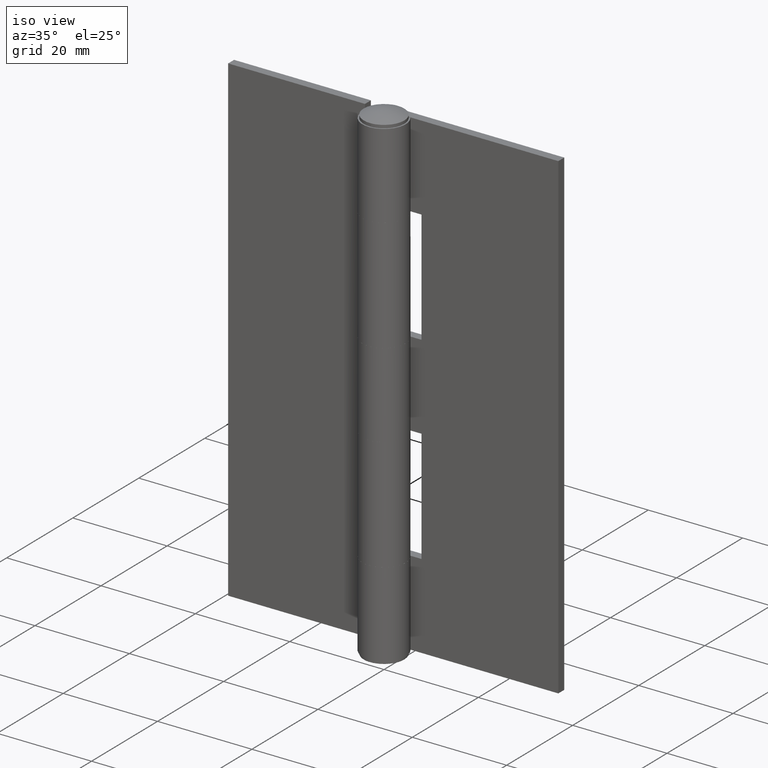
[diagram: clean part render]
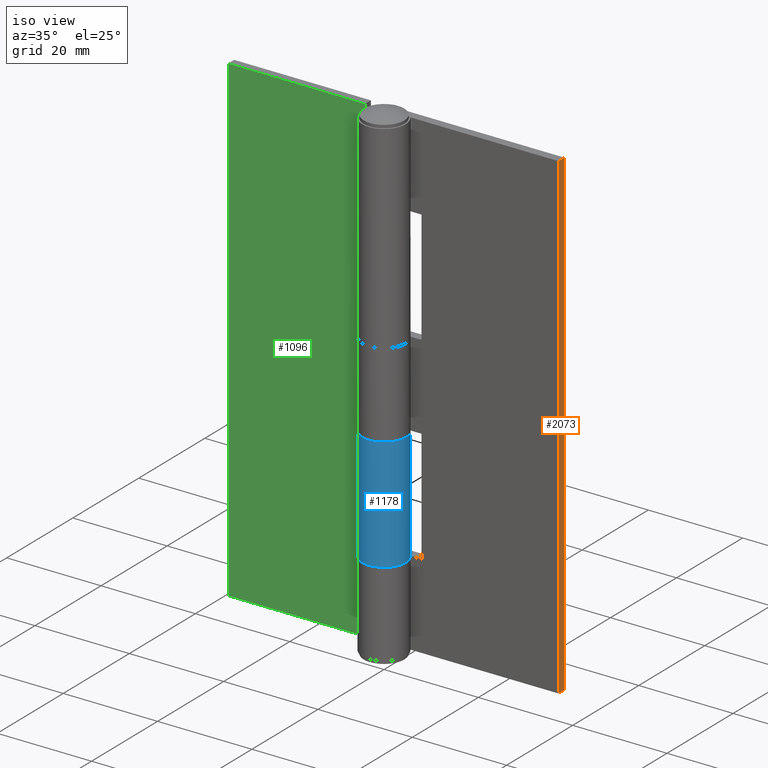
[diagram: same view with three faces highlighted in distinct colors, each labeled with its STEP entity id]
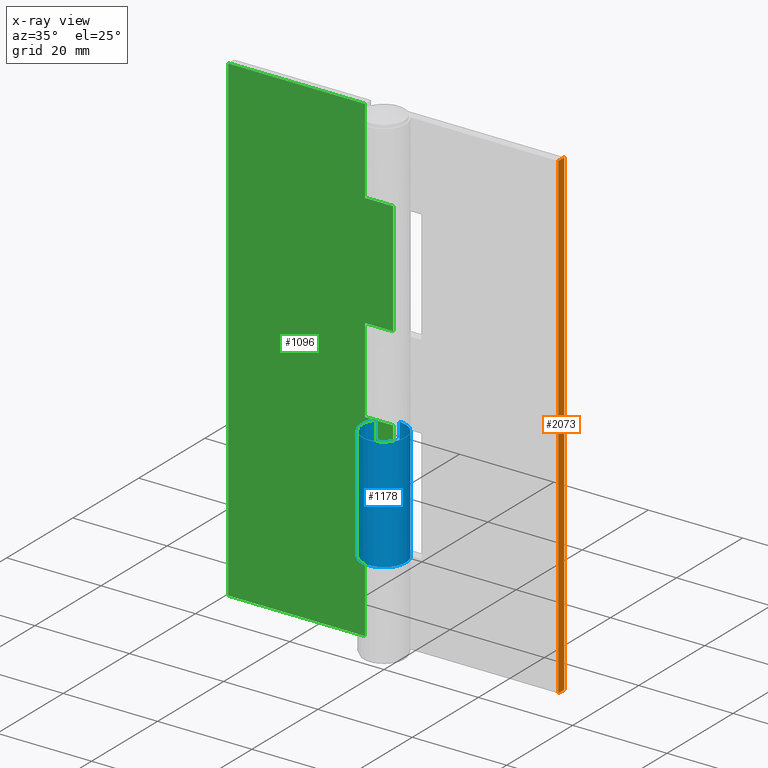
[diagram: x-ray of the same camera — body ghosted, the three highlighted faces saturated]
A machine part, iso view with three faces highlighted in distinct colors.
The next image is the same camera in x-ray (body ghosted, the three faces saturated) — at least one of them is partly hidden behind the body in this view.
Their STEP definitions:

[orange] entity #2073 — the highlighted face is a freeform B-spline surface patch.
#1602=CARTESIAN_POINT('',(35.0,4.599998000000000,102.0));
#1603=VERTEX_POINT('',#1602);
#1609=CARTESIAN_POINT('',(35.0,4.599998000000000,0.0));
#1610=VERTEX_POINT('',#1609);
#1611=CARTESIAN_POINT('',(35.0,4.599998000000000,102.0));
#1612=CARTESIAN_POINT('',(35.0,4.599998000000000,0.0));
#1613=QUASI_UNIFORM_CURVE('',1,(#1611,#1612),.UNSPECIFIED.,.F.,.U.);
#1614=EDGE_CURVE('',#1603,#1610,#1613,.T.);
#2019=CARTESIAN_POINT('',(35.0,2.799999000000000,0.0));
#2020=VERTEX_POINT('',#2019);
#2021=CARTESIAN_POINT('',(35.0,2.799999000000000,0.0));
#2022=CARTESIAN_POINT('',(35.0,4.599998000000000,0.0));
#2023=QUASI_UNIFORM_CURVE('',1,(#2021,#2022),.UNSPECIFIED.,.F.,.U.);
#2024=EDGE_CURVE('',#2020,#1610,#2023,.T.);
#2040=CARTESIAN_POINT('',(35.0,2.799999000000000,102.0));
#2041=VERTEX_POINT('',#2040);
#2047=CARTESIAN_POINT('',(35.0,2.799999000000000,102.0));
#2048=CARTESIAN_POINT('',(35.0,4.599998000000000,102.0));
#2049=QUASI_UNIFORM_CURVE('',1,(#2047,#2048),.UNSPECIFIED.,.F.,.U.);
#2050=EDGE_CURVE('',#2041,#1603,#2049,.T.);
#2058=CARTESIAN_POINT('',(35.0,2.710089053438747,-5.094899802304204));
#2059=CARTESIAN_POINT('',(35.0,2.710089053438747,107.094902538157400));
#2060=CARTESIAN_POINT('',(35.0,4.689907994840990,-5.094899802304204));
#2061=CARTESIAN_POINT('',(35.0,4.689907994840990,107.094902538157400));
#2062=B_SPLINE_SURFACE_WITH_KNOTS('',1,1,((#2058,#2060),(#2059,#2061)),.UNSPECIFIED.,.F.,.F.,.U.,(2,2),(2,2),(0.0,112.189802340461600),(0.0,1.979818941402243),.UNSPECIFIED.);
#2063=ORIENTED_EDGE('',*,*,#2024,.T.);
#2064=ORIENTED_EDGE('',*,*,#1614,.F.);
#2065=ORIENTED_EDGE('',*,*,#2050,.F.);
#2066=CARTESIAN_POINT('',(35.0,2.799999000000000,102.0));
#2067=CARTESIAN_POINT('',(35.0,2.799999000000000,0.0));
#2068=QUASI_UNIFORM_CURVE('',1,(#2066,#2067),.UNSPECIFIED.,.F.,.U.);
#2069=EDGE_CURVE('',#2041,#2020,#2068,.T.);
#2070=ORIENTED_EDGE('',*,*,#2069,.T.);
#2071=EDGE_LOOP('',(#2063,#2064,#2065,#2070));
#2072=FACE_OUTER_BOUND('',#2071,.T.);
#2073=ADVANCED_FACE('',(#2072),#2062,.F.);

[blue] entity #1178 — the highlighted face is a freeform B-spline surface patch.
#475=CARTESIAN_POINT('',(-3.687479559265210,2.749999000000000,18.000000000000249));
#476=VERTEX_POINT('',#475);
#519=CARTESIAN_POINT('',(0.004289521649760,4.599998000000000,18.0));
#520=VERTEX_POINT('',#519);
#526=CARTESIAN_POINT('',(-3.687479559265210,2.749999000000000,18.000000000000249));
#527=CARTESIAN_POINT('',(-4.004047655972155,2.326184775688924,18.000000000000188));
#528=CARTESIAN_POINT('',(-4.421965141754654,1.498452534881914,18.000000000000330));
#529=CARTESIAN_POINT('',(-4.619158502781184,0.352103005805580,18.000000000000231));
#530=CARTESIAN_POINT('',(-4.588931636637108,-0.547805897309904,18.000000000000320));
#531=CARTESIAN_POINT('',(-4.431734295233734,-1.320510994021932,18.000000000000231));
#532=CARTESIAN_POINT('',(-4.122541154918716,-2.098097710249945,18.000000000000099));
#533=CARTESIAN_POINT('',(-3.599803506753085,-2.929537098987172,18.000000000000810));
#534=CARTESIAN_POINT('',(-2.897900607202823,-3.623076534515189,18.000000000000039));
#535=CARTESIAN_POINT('',(-1.953986638569426,-4.207918461931410,18.000000000000320));
#536=CARTESIAN_POINT('',(-1.066341994223844,-4.511924369887498,18.000000000000249));
#537=CARTESIAN_POINT('',(-0.139971567692412,-4.619390767764738,18.000000000000249));
#538=CARTESIAN_POINT('',(0.663573734716620,-4.577884626356755,18.000000000000409));
#539=CARTESIAN_POINT('',(1.618807893161153,-4.349735477278495,17.999999999999691));
#540=CARTESIAN_POINT('',(2.428702329997305,-3.943906041234202,18.000000000001020));
#541=CARTESIAN_POINT('',(3.124716508235053,-3.400010122023459,17.999999999999609));
#542=CARTESIAN_POINT('',(3.721043626967757,-2.767886336582733,18.000000000000941));
#543=CARTESIAN_POINT('',(4.249875411535053,-1.878607147123456,17.999999999999378));
#544=CARTESIAN_POINT('',(4.532095788405921,-0.935693467716755,18.000000000001730));
#545=CARTESIAN_POINT('',(4.630968464546582,0.023573879071402,17.999999999997691));
#546=CARTESIAN_POINT('',(4.536681996805681,1.004497310412920,18.000000000000920));
#547=CARTESIAN_POINT('',(4.190480373489985,1.978038566809289,18.000000000000249));
#548=CARTESIAN_POINT('',(3.618006614213923,2.910659603799597,18.000000000000210));
#549=CARTESIAN_POINT('',(2.884535372424856,3.643490423473032,18.000000000000298));
#550=CARTESIAN_POINT('',(1.985970309843780,4.181067498500703,18.000000000000210));
#551=CARTESIAN_POINT('',(1.062056826676249,4.514056765780568,18.000000000000401));
#552=CARTESIAN_POINT('',(0.388974045819395,4.599740233917829,18.000000000000028));
#553=CARTESIAN_POINT('',(0.004289521649760,4.599998000000000,18.0));
#554=B_SPLINE_CURVE_WITH_KNOTS('',3,(#526,#527,#528,#529,#530,#531,#532,#533,#534,#535,#536,#537,#538,#539,#540,#541,#542,#543,#544,#545,#546,#547,#548,#549,#550,#551,#552,#553),.UNSPECIFIED.,.F.,.U.,(4,1,1,1,1,1,1,1,1,1,1,1,1,1,1,1,1,1,1,1,1,1,1,1,1,4),(0.000000588664864,1.586827262887834,2.740947564820804,3.462258061168676,4.279755028636220,5.097242970480849,5.962815379554691,7.212989879264189,8.030478368644243,9.280750910881030,10.002070283071740,10.819561606364330,11.685142890819980,12.935290132784010,13.512380444182090,14.329855489522339,15.532030415904771,16.589968758283639,17.263157582705880,18.417297886181270,19.523186692019650,20.340675546737689,21.687136698049269,22.600788814238260,23.466391996909589,24.620428434843880),.UNSPECIFIED.);
#555=EDGE_CURVE('',#476,#520,#554,.T.);
#565=CARTESIAN_POINT('',(-3.687479559265210,2.749999000000000,42.0));
#566=VERTEX_POINT('',#565);
#567=CARTESIAN_POINT('',(0.004289521649760,4.599998000000000,42.0));
#568=VERTEX_POINT('',#567);
#569=CARTESIAN_POINT('',(-3.687479559265210,2.749999000000000,42.0));
#570=CARTESIAN_POINT('',(-3.869573415089463,2.505891541783529,42.000000000000028));
#571=CARTESIAN_POINT('',(-4.160083811060068,2.022738781091870,42.000000000000021));
#572=CARTESIAN_POINT('',(-4.493171333597922,1.134092869066442,42.000000000000007));
#573=CARTESIAN_POINT('',(-4.644807320990588,0.127645009933376,41.999999999999822));
#574=CARTESIAN_POINT('',(-4.548576744610353,-0.868723592868786,42.000000000000547));
#575=CARTESIAN_POINT('',(-4.258919927321644,-1.822595200895267,42.000000000000142));
#576=CARTESIAN_POINT('',(-3.849490039259850,-2.574544736364393,41.999999999999297));
#577=CARTESIAN_POINT('',(-3.302428090205509,-3.227471658237674,42.000000000000668));
#578=CARTESIAN_POINT('',(-2.747372943248498,-3.716249552975491,41.999999999999631));
#579=CARTESIAN_POINT('',(-2.118119306921339,-4.106111501332375,41.999999999999233));
#580=CARTESIAN_POINT('',(-1.420217729725903,-4.395142604089883,42.000000000002657));
#581=CARTESIAN_POINT('',(-0.591311863265327,-4.594452500713954,41.999999999998479));
#582=CARTESIAN_POINT('',(0.296210185058935,-4.622833747522521,42.000000000000163));
#583=CARTESIAN_POINT('',(1.199571376679604,-4.466010517359633,42.000000000000433));
#584=CARTESIAN_POINT('',(1.910480309543457,-4.206858207300535,41.999999999999297));
#585=CARTESIAN_POINT('',(2.568876950645702,-3.837187353081516,41.999999999999602));
#586=CARTESIAN_POINT('',(3.228059728490100,-3.322350455869780,42.000000000000220));
#587=CARTESIAN_POINT('',(3.928201277659945,-2.497713971453666,41.999999999999268));
#588=CARTESIAN_POINT('',(4.367220084032456,-1.558385664209264,42.000000000001712));
#589=CARTESIAN_POINT('',(4.580203126841495,-0.618203530418208,41.999999999996120));
#590=CARTESIAN_POINT('',(4.621442850629629,0.121614302399138,42.000000000010267));
#591=CARTESIAN_POINT('',(4.527753762390300,0.919697151699091,41.999999999995431));
#592=CARTESIAN_POINT('',(4.275413278857994,1.801570758390685,42.000000000003013));
#593=CARTESIAN_POINT('',(3.853893217622618,2.566658186185105,41.999999999998963));
#594=CARTESIAN_POINT('',(3.297238707394697,3.231404099818191,42.000000000000057));
#595=CARTESIAN_POINT('',(2.732383567445895,3.734376979867385,42.000000000000149));
#596=CARTESIAN_POINT('',(1.903078804906316,4.230775454191972,42.000000000000682));
#597=CARTESIAN_POINT('',(0.965966046996951,4.535644901455204,41.999999999996092));
#598=CARTESIAN_POINT('',(0.292795384322760,4.599739849723814,42.000000000008413));
#599=CARTESIAN_POINT('',(0.004289521649760,4.599998000000000,42.0));
#600=B_SPLINE_CURVE_WITH_KNOTS('',3,(#569,#570,#571,#572,#573,#574,#575,#576,#577,#578,#579,#580,#581,#582,#583,#584,#585,#586,#587,#588,#589,#590,#591,#592,#593,#594,#595,#596,#597,#598,#599),.UNSPECIFIED.,.F.,.U.,(4,1,1,1,1,1,1,1,1,1,1,1,1,1,1,1,1,1,1,1,1,1,1,1,1,1,1,1,4),(0.000000588656697,0.913629547780889,1.683002787392578,2.837121780872522,3.943123890219159,4.664441279150285,5.818505076129078,6.491707567711192,7.212989879259716,8.030478368640043,8.703695525085834,9.473100453362495,10.579097127039031,11.348525877392451,12.214077193702030,12.839124027656069,13.608547594056351,14.714542032511231,16.060995989600769,16.686143413117978,17.599789292245742,18.273028270469339,19.090396415403070,20.340675546737192,20.869648315036670,21.687136698048981,22.600788814238118,23.754895575559310,24.620428434843902),.UNSPECIFIED.);
#601=EDGE_CURVE('',#566,#568,#600,.T.);
#1137=CARTESIAN_POINT('',(-3.687479559265210,2.749999000000000,42.0));
#1138=CARTESIAN_POINT('',(-3.687479559265210,2.749999000000000,18.000000000000249));
#1139=QUASI_UNIFORM_CURVE('',1,(#1137,#1138),.UNSPECIFIED.,.F.,.U.);
#1140=EDGE_CURVE('',#566,#476,#1139,.T.);
#1146=CARTESIAN_POINT('',(-3.597325666293642,2.866923098135845,42.600000000000009));
#1147=CARTESIAN_POINT('',(-3.597325666293642,2.866923098135845,17.385000000000002));
#1148=CARTESIAN_POINT('',(-7.288903981172223,-1.765154207976948,42.600000000000009));
#1149=CARTESIAN_POINT('',(-7.288903981172223,-1.765154207976948,17.384999999999994));
#1150=CARTESIAN_POINT('',(-1.887117409339081,-4.195090926710597,42.600000000000009));
#1151=CARTESIAN_POINT('',(-1.887117409339081,-4.195090926710597,17.385000000000002));
#1152=CARTESIAN_POINT('',(3.514669162494061,-6.625027645444248,42.600000000000009));
#1153=CARTESIAN_POINT('',(3.514669162494061,-6.625027645444248,17.384999999999994));
#1154=CARTESIAN_POINT('',(4.531685509175729,-0.789826845534344,42.600000000000009));
#1155=CARTESIAN_POINT('',(4.531685509175729,-0.789826845534344,17.385000000000002));
#1156=CARTESIAN_POINT('',(5.548701855857396,5.045373954375559,42.600000000000009));
#1157=CARTESIAN_POINT('',(5.548701855857396,5.045373954375559,17.384999999999994));
#1158=CARTESIAN_POINT('',(-0.356635384943821,4.586154293327437,42.600000000000009));
#1159=CARTESIAN_POINT('',(-0.356635384943821,4.586154293327437,17.385000000000002));
#1167=(BOUNDED_SURFACE()B_SPLINE_SURFACE(1,2,((#1146,#1148,#1150,#1152,#1154,#1156,#1158),(#1147,#1149,#1151,#1153,#1155,#1157,#1159)),.UNSPECIFIED.,.F.,.F.,.U.)B_SPLINE_SURFACE_WITH_KNOTS((2,2),(3,2,2,3),(0.0,25.215000000000011),(0.0,9.007431044261566,18.014862088523131,27.022293132784700),.UNSPECIFIED.)GEOMETRIC_REPRESENTATION_ITEM()RATIONAL_B_SPLINE_SURFACE(((1.0,0.613366643455859,1.0,0.613366643455859,1.0,0.613366643455859,1.0),(1.0,0.613366643455859,1.0,0.613366643455859,1.0,0.613366643455859,1.0)))REPRESENTATION_ITEM('')SURFACE());
#1168=ORIENTED_EDGE('',*,*,#1140,.T.);
#1169=ORIENTED_EDGE('',*,*,#555,.T.);
#1170=CARTESIAN_POINT('',(0.004289521649760,4.599998000000000,42.0));
#1171=CARTESIAN_POINT('',(0.004289521649760,4.599998000000000,18.0));
#1172=QUASI_UNIFORM_CURVE('',1,(#1170,#1171),.UNSPECIFIED.,.F.,.U.);
#1173=EDGE_CURVE('',#568,#520,#1172,.T.);
#1174=ORIENTED_EDGE('',*,*,#1173,.F.);
#1175=ORIENTED_EDGE('',*,*,#601,.F.);
#1176=EDGE_LOOP('',(#1168,#1169,#1174,#1175));
#1177=FACE_OUTER_BOUND('',#1176,.T.);
#1178=ADVANCED_FACE('',(#1177),#1167,.T.);

[green] entity #1096 — the highlighted face is a freeform B-spline surface patch.
#437=CARTESIAN_POINT('',(-6.0,2.799999000000000,0.0));
#438=VERTEX_POINT('',#437);
#453=CARTESIAN_POINT('',(-6.0,2.799999000000055,18.0));
#454=VERTEX_POINT('',#453);
#460=CARTESIAN_POINT('',(-6.0,2.799999000000000,0.0));
#461=CARTESIAN_POINT('',(-6.0,2.799999000000055,18.0));
#462=QUASI_UNIFORM_CURVE('',1,(#460,#461),.UNSPECIFIED.,.F.,.U.);
#463=EDGE_CURVE('',#438,#454,#462,.T.);
#482=CARTESIAN_POINT('',(1.714448E-016,2.799999000000000,18.000000000000249));
#483=VERTEX_POINT('',#482);
#513=CARTESIAN_POINT('',(-6.0,2.799999000000055,18.0));
#514=CARTESIAN_POINT('',(1.714448E-016,2.799999000000000,18.000000000000249));
#515=QUASI_UNIFORM_CURVE('',1,(#513,#514),.UNSPECIFIED.,.F.,.U.);
#516=EDGE_CURVE('',#454,#483,#515,.T.);
#610=CARTESIAN_POINT('',(-6.0,2.799999000000000,42.0));
#611=VERTEX_POINT('',#610);
#617=CARTESIAN_POINT('',(1.714448E-016,2.799999000000000,42.0));
#618=VERTEX_POINT('',#617);
#619=CARTESIAN_POINT('',(-6.0,2.799999000000000,42.0));
#620=CARTESIAN_POINT('',(1.714448E-016,2.799999000000000,42.0));
#621=QUASI_UNIFORM_CURVE('',1,(#619,#620),.UNSPECIFIED.,.F.,.U.);
#622=EDGE_CURVE('',#611,#618,#621,.T.);
#710=CARTESIAN_POINT('',(1.714448E-016,2.799999000000000,60.0));
#711=VERTEX_POINT('',#710);
#741=CARTESIAN_POINT('',(-6.0,2.799999000000055,60.0));
#742=VERTEX_POINT('',#741);
#743=CARTESIAN_POINT('',(1.714448E-016,2.799999000000000,60.0));
#744=CARTESIAN_POINT('',(-6.0,2.799999000000055,60.0));
#745=QUASI_UNIFORM_CURVE('',1,(#743,#744),.UNSPECIFIED.,.F.,.U.);
#746=EDGE_CURVE('',#711,#742,#745,.T.);
#768=CARTESIAN_POINT('',(-6.0,2.799999000000055,60.0));
#769=CARTESIAN_POINT('',(-6.0,2.799999000000000,42.0));
#770=QUASI_UNIFORM_CURVE('',1,(#768,#769),.UNSPECIFIED.,.F.,.U.);
#771=EDGE_CURVE('',#742,#611,#770,.T.);
#788=CARTESIAN_POINT('',(-6.0,2.799999499999985,102.0));
#789=VERTEX_POINT('',#788);
#790=CARTESIAN_POINT('',(-6.0,2.799999000000055,84.0));
#791=VERTEX_POINT('',#790);
#792=CARTESIAN_POINT('',(-6.0,2.799999499999985,102.0));
#793=CARTESIAN_POINT('',(-6.0,2.799999000000055,84.0));
#794=QUASI_UNIFORM_CURVE('',1,(#792,#793),.UNSPECIFIED.,.F.,.U.);
#795=EDGE_CURVE('',#789,#791,#794,.T.);
#866=CARTESIAN_POINT('',(1.714448E-016,2.799999000000000,84.0));
#867=VERTEX_POINT('',#866);
#868=CARTESIAN_POINT('',(-6.0,2.799999000000055,84.0));
#869=CARTESIAN_POINT('',(1.714448E-016,2.799999000000000,84.0));
#870=QUASI_UNIFORM_CURVE('',1,(#868,#869),.UNSPECIFIED.,.F.,.U.);
#871=EDGE_CURVE('',#791,#867,#870,.T.);
#916=CARTESIAN_POINT('',(-35.0,2.799999000000000,102.0));
#917=VERTEX_POINT('',#916);
#918=CARTESIAN_POINT('',(-6.0,2.799999499999985,102.0));
#919=CARTESIAN_POINT('',(-35.0,2.799999000000000,102.0));
#920=QUASI_UNIFORM_CURVE('',1,(#918,#919),.UNSPECIFIED.,.F.,.U.);
#921=EDGE_CURVE('',#789,#917,#920,.T.);
#944=CARTESIAN_POINT('',(-35.0,2.799999000000000,0.0));
#945=VERTEX_POINT('',#944);
#953=CARTESIAN_POINT('',(-35.0,2.799999000000000,102.0));
#954=CARTESIAN_POINT('',(-35.0,2.799999000000000,0.0));
#955=QUASI_UNIFORM_CURVE('',1,(#953,#954),.UNSPECIFIED.,.F.,.U.);
#956=EDGE_CURVE('',#917,#945,#955,.T.);
#989=CARTESIAN_POINT('',(1.714448E-016,2.799999000000000,84.0));
#990=CARTESIAN_POINT('',(1.714448E-016,2.799999000000000,60.0));
#991=QUASI_UNIFORM_CURVE('',1,(#989,#990),.UNSPECIFIED.,.F.,.U.);
#992=EDGE_CURVE('',#867,#711,#991,.T.);
#1064=CARTESIAN_POINT('',(-6.0,2.799999000000000,0.0));
#1065=CARTESIAN_POINT('',(-35.0,2.799999000000000,0.0));
#1066=QUASI_UNIFORM_CURVE('',1,(#1064,#1065),.UNSPECIFIED.,.F.,.U.);
#1067=EDGE_CURVE('',#438,#945,#1066,.T.);
#1073=CARTESIAN_POINT('',(-36.748249932163212,2.799999000000000,107.094899802304200));
#1074=CARTESIAN_POINT('',(-36.748249932163212,2.799999000000000,-5.094902538157399));
#1075=CARTESIAN_POINT('',(1.748250870936364,2.799999000000000,107.094899802304200));
#1076=CARTESIAN_POINT('',(1.748250870936364,2.799999000000000,-5.094902538157399));
#1077=B_SPLINE_SURFACE_WITH_KNOTS('',1,1,((#1073,#1075),(#1074,#1076)),.UNSPECIFIED.,.F.,.F.,.U.,(2,2),(2,2),(0.0,112.189802340461600),(0.0,38.496500803099572),.UNSPECIFIED.);
#1078=ORIENTED_EDGE('',*,*,#463,.T.);
#1079=ORIENTED_EDGE('',*,*,#516,.T.);
#1080=CARTESIAN_POINT('',(1.714448E-016,2.799999000000000,42.0));
#1081=CARTESIAN_POINT('',(1.714448E-016,2.799999000000000,18.000000000000249));
#1082=QUASI_UNIFORM_CURVE('',1,(#1080,#1081),.UNSPECIFIED.,.F.,.U.);
#1083=EDGE_CURVE('',#618,#483,#1082,.T.);
#1084=ORIENTED_EDGE('',*,*,#1083,.F.);
#1085=ORIENTED_EDGE('',*,*,#622,.F.);
#1086=ORIENTED_EDGE('',*,*,#771,.F.);
#1087=ORIENTED_EDGE('',*,*,#746,.F.);
#1088=ORIENTED_EDGE('',*,*,#992,.F.);
#1089=ORIENTED_EDGE('',*,*,#871,.F.);
#1090=ORIENTED_EDGE('',*,*,#795,.F.);
#1091=ORIENTED_EDGE('',*,*,#921,.T.);
#1092=ORIENTED_EDGE('',*,*,#956,.T.);
#1093=ORIENTED_EDGE('',*,*,#1067,.F.);
#1094=EDGE_LOOP('',(#1078,#1079,#1084,#1085,#1086,#1087,#1088,#1089,#1090,#1091,#1092,#1093));
#1095=FACE_OUTER_BOUND('',#1094,.T.);
#1096=ADVANCED_FACE('',(#1095),#1077,.T.);